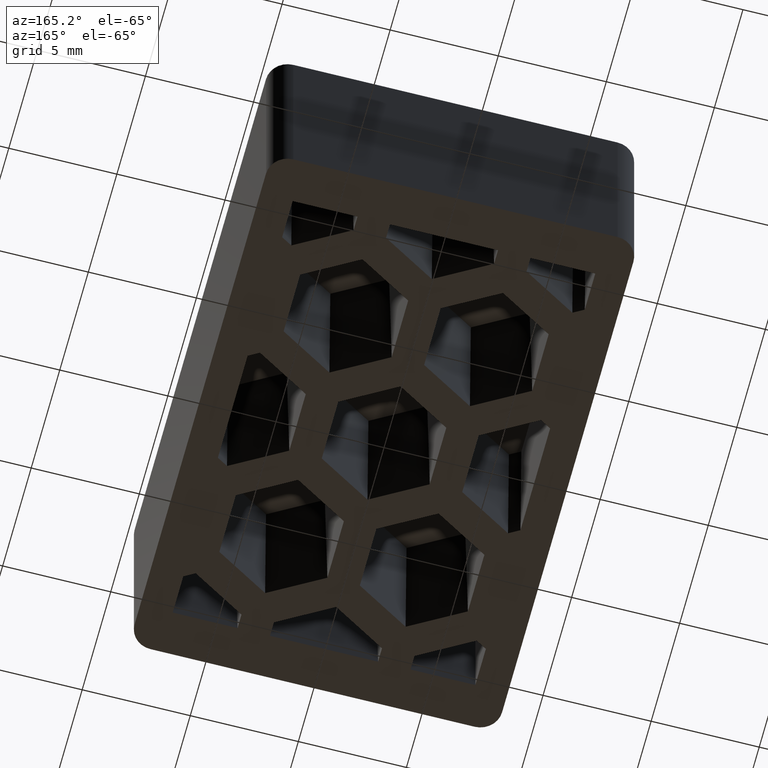
[diagram: clean part render]
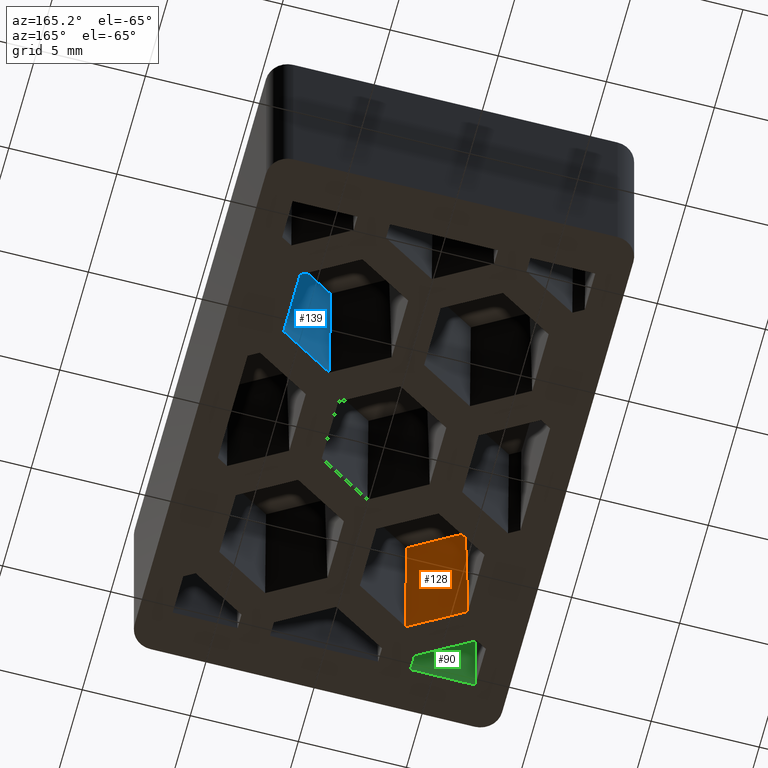
[diagram: same view with three faces highlighted in distinct colors, each labeled with its STEP entity id]
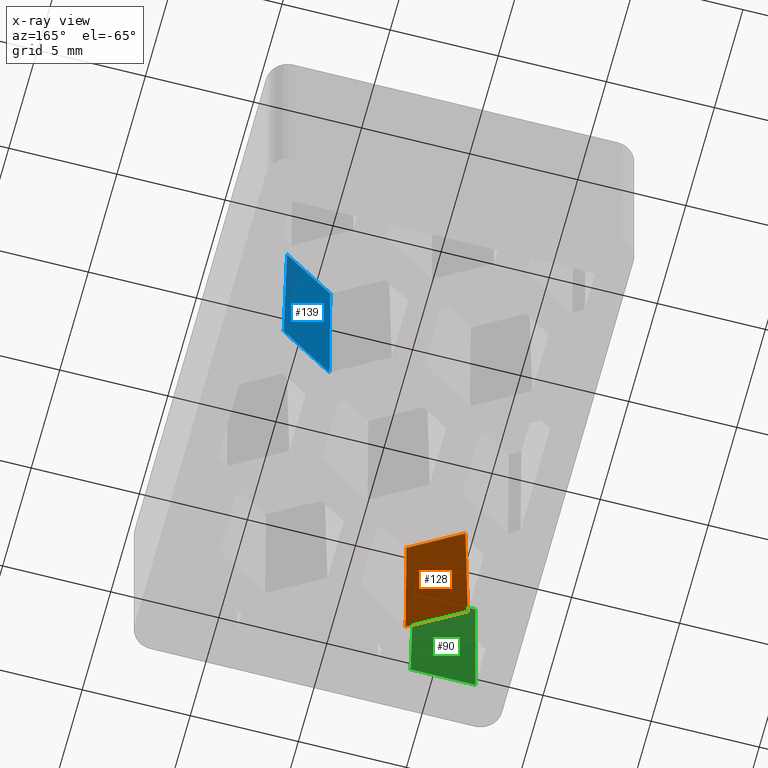
[diagram: x-ray of the same camera — body ghosted, the three highlighted faces saturated]
A machine part, auxiliary view with three faces highlighted in distinct colors.
The next image is the same camera in x-ray (body ghosted, the three faces saturated) — at least one of them is partly hidden behind the body in this view.
Their STEP definitions:

[orange] entity #128 — the highlighted planar face has unit normal (-0.4999, -0.8659, 0.0175).
#128 = ADVANCED_FACE( '', ( #334 ), #335, .F. );
#334 = FACE_OUTER_BOUND( '', #620, .T. );
#335 = PLANE( '', #621 );
#620 = EDGE_LOOP( '', ( #1277, #1278, #1279, #1280 ) );
#621 = AXIS2_PLACEMENT_3D( '', #1281, #1282, #1283 );
#1277 = ORIENTED_EDGE( '', *, *, #1884, .T. );
#1278 = ORIENTED_EDGE( '', *, *, #2070, .F. );
#1279 = ORIENTED_EDGE( '', *, *, #2071, .F. );
#1280 = ORIENTED_EDGE( '', *, *, #2068, .T. );
#1281 = CARTESIAN_POINT( '', ( -2.00000000000000, -9.23760430703401, 5.65621446424541E-016 ) );
#1282 = DIRECTION( '', ( -0.499923847578196, -0.865893503920754, 0.0174524064372836 ) );
#1283 = DIRECTION( '', ( 0.866025403784439, -0.500000000000000, 3.06058338817720E-017 ) );
#1884 = EDGE_CURVE( '', #2265, #2263, #2266, .T. );
#2068 = EDGE_CURVE( '', #2585, #2265, #2586, .T. );
#2070 = EDGE_CURVE( '', #2588, #2263, #2589, .T. );
#2071 = EDGE_CURVE( '', #2585, #2588, #2590, .T. );
#2263 = VERTEX_POINT( '', #2862 );
#2265 = VERTEX_POINT( '', #2865 );
#2266 = LINE( '', #2866, #2867 );
#2585 = VERTEX_POINT( '', #3357 );
#2586 = LINE( '', #3358, #3359 );
#2588 = VERTEX_POINT( '', #3362 );
#2589 = LINE( '', #3363, #3364 );
#2590 = LINE( '', #3365, #3366 );
#2862 = CARTESIAN_POINT( '', ( -5.75000000000000, -7.07254079757292, 4.33053919918789E-016 ) );
#2865 = CARTESIAN_POINT( '', ( -3.25000000000000, -8.51591647054698, 5.21432270922623E-016 ) );
#2866 = CARTESIAN_POINT( '', ( -2.00000000000000, -9.23760430703401, 5.65621446424541E-016 ) );
#2867 = VECTOR( '', #3620, 1000.00000000000 );
#3357 = CARTESIAN_POINT( '', ( -3.25000000000000, -8.35467348758652, 8.00000000000000 ) );
#3358 = CARTESIAN_POINT( '', ( -3.25000000000000, -8.51418742402122, 0.0857858863196342 ) );
#3359 = VECTOR( '', #3828, 1000.00000000000 );
#3362 = CARTESIAN_POINT( '', ( -5.61035948057426, -6.99191930609269, 8.00000000000000 ) );
#3363 = CARTESIAN_POINT( '', ( -5.74923861107680, -7.07210120947315, 0.0436199421964272 ) );
#3364 = VECTOR( '', #3830, 1000.00000000000 );
#3365 = CARTESIAN_POINT( '', ( -1.93017974028713, -9.11667206981367, 8.00000000000000 ) );
#3366 = VECTOR( '', #3831, 1000.00000000000 );
#3620 = DIRECTION( '', ( -0.866025403784439, 0.500000000000000, -3.06151588455594E-017 ) );
#3828 = DIRECTION( '', ( -5.01127490236358E-019, -0.0201512801671580, -0.999796942337605 ) );
#3830 = DIRECTION( '', ( -0.0174515205435363, -0.0100756400835790, -0.999796942337605 ) );
#3831 = DIRECTION( '', ( -0.866025403784439, 0.500000000000000, -3.06151588455594E-017 ) );

[blue] entity #139 — the highlighted planar face has unit normal (0.4999, -0.8659, 0.0175).
#139 = ADVANCED_FACE( '', ( #356 ), #357, .F. );
#356 = FACE_OUTER_BOUND( '', #642, .T. );
#357 = PLANE( '', #643 );
#642 = EDGE_LOOP( '', ( #1354, #1355, #1356, #1357 ) );
#643 = AXIS2_PLACEMENT_3D( '', #1358, #1359, #1360 );
#1354 = ORIENTED_EDGE( '', *, *, #1898, .F. );
#1355 = ORIENTED_EDGE( '', *, *, #2085, .F. );
#1356 = ORIENTED_EDGE( '', *, *, #1983, .T. );
#1357 = ORIENTED_EDGE( '', *, *, #2083, .T. );
#1358 = CARTESIAN_POINT( '', ( 0.875000000000002, 1.37120688932536, -8.39594334536427E-017 ) );
#1359 = DIRECTION( '', ( 0.499923847578195, -0.865893503920754, 0.0174524064372836 ) );
#1360 = DIRECTION( '', ( 0.866025403784439, 0.500000000000000, -3.06058338817720E-017 ) );
#1898 = EDGE_CURVE( '', #2292, #2293, #2294, .F. );
#1983 = EDGE_CURVE( '', #2449, #2446, #2450, .F. );
#2083 = EDGE_CURVE( '', #2446, #2293, #2604, .T. );
#2085 = EDGE_CURVE( '', #2449, #2292, #2606, .T. );
#2292 = VERTEX_POINT( '', #2906 );
#2293 = VERTEX_POINT( '', #2907 );
#2294 = LINE( '', #2908, #2909 );
#2446 = VERTEX_POINT( '', #3132 );
#2449 = VERTEX_POINT( '', #3136 );
#2450 = LINE( '', #3137, #3138 );
#2604 = LINE( '', #3391, #3392 );
#2606 = LINE( '', #3395, #3396 );
#2906 = CARTESIAN_POINT( '', ( 3.25000000000000, 2.74241377865072, -1.67918866907285E-016 ) );
#2907 = CARTESIAN_POINT( '', ( 5.75000000000000, 4.18578945162479, -2.56297217911120E-016 ) );
#2908 = CARTESIAN_POINT( '', ( 4.50000000000000, 3.46410161513775, -2.12108042409203E-016 ) );
#2909 = VECTOR( '', #3634, 1000.00000000000 );
#3132 = CARTESIAN_POINT( '', ( 5.61035948057425, 4.26641094310502, 8.00000000000000 ) );
#3136 = CARTESIAN_POINT( '', ( 3.25000000000000, 2.90365676161118, 8.00000000000000 ) );
#3137 = CARTESIAN_POINT( '', ( 4.43017974028713, 3.58503385235810, 8.00000000000000 ) );
#3138 = VECTOR( '', #3743, 1000.00000000000 );
#3391 = CARTESIAN_POINT( '', ( 5.75098980560017, 4.18521798709509, -0.0567059248553495 ) );
#3392 = VECTOR( '', #3843, 1000.00000000000 );
#3395 = CARTESIAN_POINT( '', ( 3.25000000000000, 2.74185696705768, -0.0276259633910718 ) );
#3396 = VECTOR( '', #3845, 1000.00000000000 );
#3634 = DIRECTION( '', ( -0.866025403784439, -0.500000000000000, 3.06151588455594E-017 ) );
#3743 = DIRECTION( '', ( -0.866025403784439, -0.500000000000000, 3.06151588455594E-017 ) );
#3843 = DIRECTION( '', ( 0.0174515205435363, -0.0100756400835790, -0.999796942337605 ) );
#3845 = DIRECTION( '', ( 3.00523943436880E-018, -0.0201512801671580, -0.999796942337605 ) );

[green] entity #90 — the highlighted planar face has unit normal (0, 1, -0).
#90 = ADVANCED_FACE( '', ( #258 ), #259, .T. );
#258 = FACE_OUTER_BOUND( '', #544, .T. );
#259 = PLANE( '', #545 );
#544 = EDGE_LOOP( '', ( #996, #997, #998, #999 ) );
#545 = AXIS2_PLACEMENT_3D( '', #1000, #1001, #1002 );
#996 = ORIENTED_EDGE( '', *, *, #1973, .T. );
#997 = ORIENTED_EDGE( '', *, *, #1974, .F. );
#998 = ORIENTED_EDGE( '', *, *, #1975, .T. );
#999 = ORIENTED_EDGE( '', *, *, #1843, .F. );
#1000 = CARTESIAN_POINT( '', ( 19.5000000000000, -10.5000000000000, -8.00000000009939 ) );
#1001 = DIRECTION( '', ( 0.000000000000000, 1.00000000000000, -6.12303176911189E-017 ) );
#1002 = DIRECTION( '', ( 1.00000000000000, 0.000000000000000, 0.000000000000000 ) );
#1843 = EDGE_CURVE( '', #2180, #2183, #2184, .T. );
#1973 = EDGE_CURVE( '', #2180, #2429, #2430, .T. );
#1974 = EDGE_CURVE( '', #2431, #2429, #2432, .T. );
#1975 = EDGE_CURVE( '', #2431, #2183, #2433, .T. );
#2180 = VERTEX_POINT( '', #2738 );
#2183 = VERTEX_POINT( '', #2742 );
#2184 = LINE( '', #2743, #2744 );
#2429 = VERTEX_POINT( '', #3106 );
#2430 = LINE( '', #3107, #3108 );
#2431 = VERTEX_POINT( '', #3109 );
#2432 = LINE( '', #3110, #3111 );
#2433 = LINE( '', #3112, #3113 );
#2738 = CARTESIAN_POINT( '', ( -6.99999999999996, -10.5000000000000, 6.42918335756748E-016 ) );
#2742 = CARTESIAN_POINT( '', ( -4.00000000000000, -10.5000000000000, 6.42918335756748E-016 ) );
#2743 = CARTESIAN_POINT( '', ( 19.5000000000000, -10.5000000000000, 6.42918335756748E-016 ) );
#2744 = VECTOR( '', #3579, 1000.00000000000 );
#3106 = CARTESIAN_POINT( '', ( -6.99999999999996, -10.5000000000000, 8.00000000000000 ) );
#3107 = CARTESIAN_POINT( '', ( -6.99999999999996, -10.5000000000000, 6.42918335756748E-016 ) );
#3108 = VECTOR( '', #3733, 1000.00000000000 );
#3109 = CARTESIAN_POINT( '', ( -4.13964051942574, -10.5000000000000, 8.00000000000000 ) );
#3110 = CARTESIAN_POINT( '', ( 19.5000000000000, -10.5000000000000, 8.00000000000000 ) );
#3111 = VECTOR( '', #3734, 1000.00000000000 );
#3112 = CARTESIAN_POINT( '', ( -3.99664954860503, -10.5000000000000, -0.191947231863755 ) );
#3113 = VECTOR( '', #3735, 1000.00000000000 );
#3579 = DIRECTION( '', ( 1.00000000000000, 0.000000000000000, 0.000000000000000 ) );
#3733 = DIRECTION( '', ( 0.000000000000000, 6.12303176911189E-017, 1.00000000000000 ) );
#3734 = DIRECTION( '', ( -1.00000000000000, 0.000000000000000, 0.000000000000000 ) );
#3735 = DIRECTION( '', ( 0.0174524064372835, -6.12209920171588E-017, -0.999847695156391 ) );